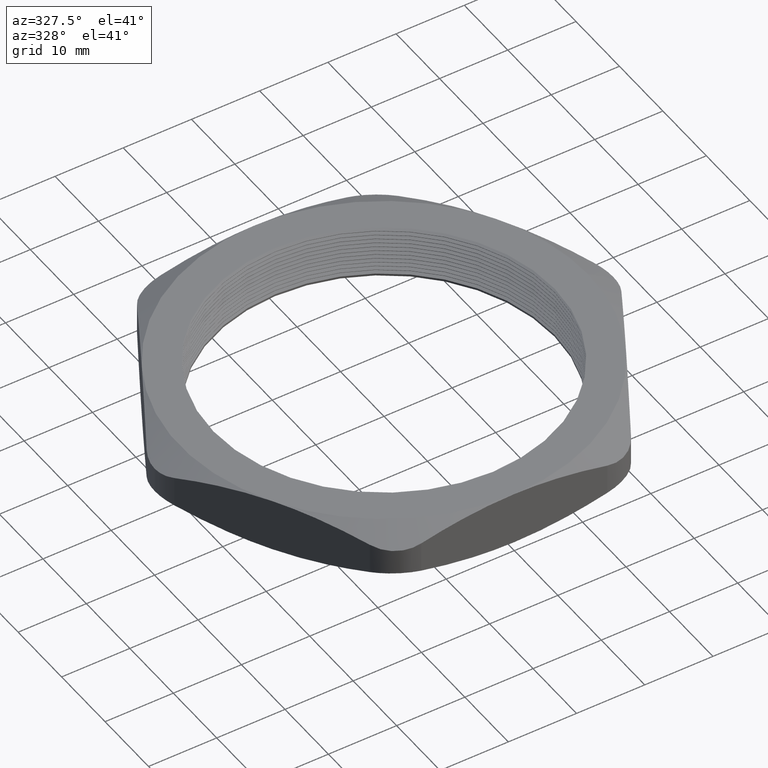
[diagram: clean part render]
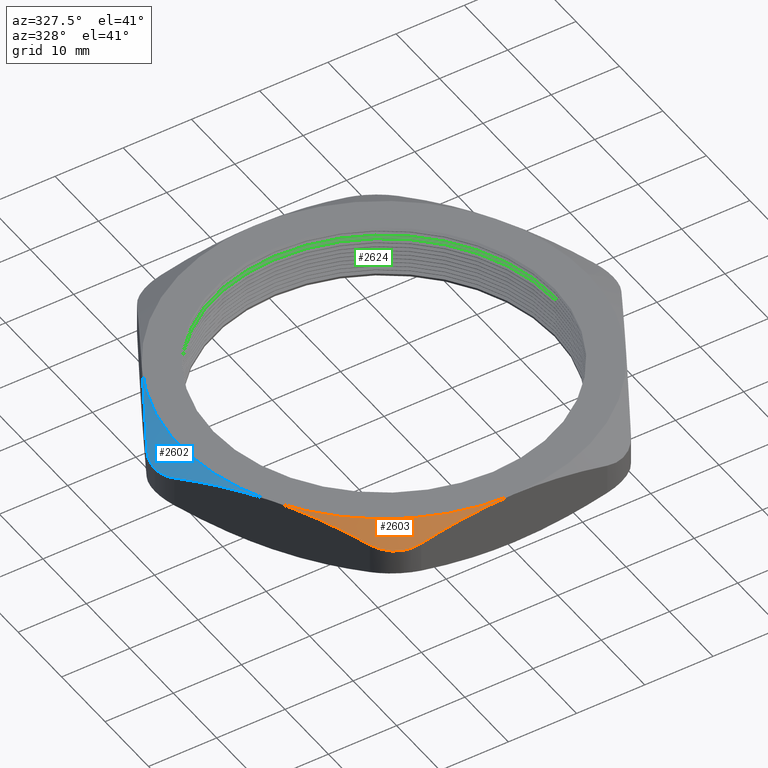
[diagram: same view with three faces highlighted in distinct colors, each labeled with its STEP entity id]
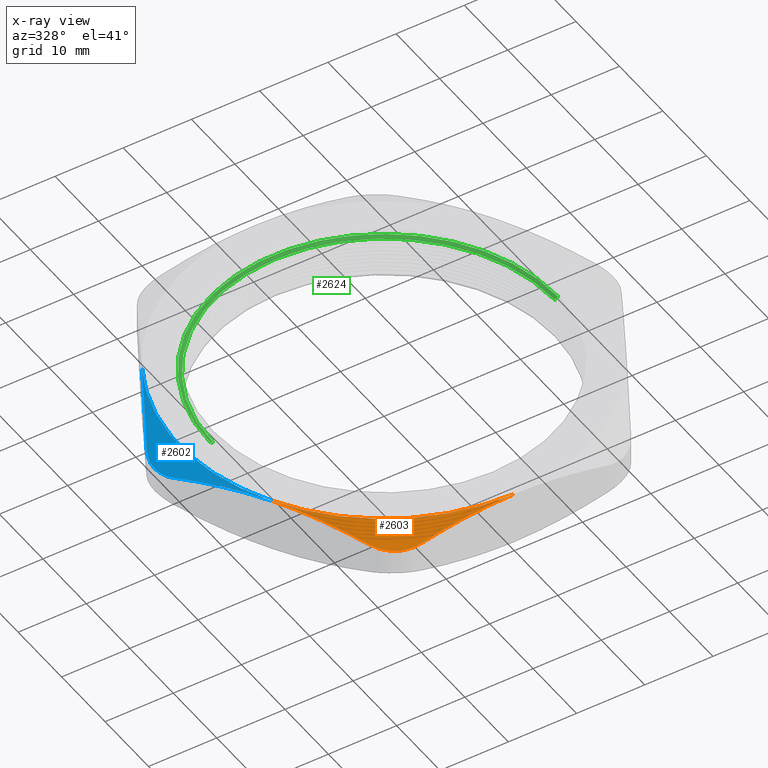
[diagram: x-ray of the same camera — body ghosted, the three highlighted faces saturated]
A machine part, auxiliary view with three faces highlighted in distinct colors.
The next image is the same camera in x-ray (body ghosted, the three faces saturated) — at least one of them is partly hidden behind the body in this view.
Their STEP definitions:

[orange] entity #2603 — the highlighted conical surface has half-angle 60 deg.
#252 = VERTEX_POINT ( 'NONE', #816 ) ;
#254 = EDGE_CURVE ( 'NONE', #255, #252, #870, .T. ) ;
#255 = VERTEX_POINT ( 'NONE', #869 ) ;
#268 = VERTEX_POINT ( 'NONE', #888 ) ;
#272 = EDGE_CURVE ( 'NONE', #273, #268, #874, .T. ) ;
#273 = VERTEX_POINT ( 'NONE', #873 ) ;
#816 = CARTESIAN_POINT ( 'NONE',  ( -0.7534421012924622500, -1.054999999999999900, 0.2427859541343048200 ) ) ;
#861 = CARTESIAN_POINT ( 'NONE',  ( -0.7534421012924622500, -1.054999999999999900, 0.2427859541343048200 ) ) ;
#862 = CARTESIAN_POINT ( 'NONE',  ( -0.7973887212075464500, -0.9788822214861553400, 0.2638030191195697700 ) ) ;
#863 = CARTESIAN_POINT ( 'NONE',  ( -0.8416764008185146900, -0.9021737102506272000, 0.2807020580561905800 ) ) ;
#864 = CARTESIAN_POINT ( 'NONE',  ( -0.9087710475143722100, -0.7859623732575179400, 0.2980438790977822400 ) ) ;
#865 = CARTESIAN_POINT ( 'NONE',  ( -0.9312463869647987800, -0.7470339434120215600, 0.3024908025705310700 ) ) ;
#866 = CARTESIAN_POINT ( 'NONE',  ( -0.9764383408460224300, -0.6687591831964321300, 0.3084714449772219000 ) ) ;
#867 = CARTESIAN_POINT ( 'NONE',  ( -0.9992330720533523200, -0.6292775506004605300, 0.3099999999999998300 ) ) ;
#868 = CARTESIAN_POINT ( 'NONE',  ( -1.021909976465637900, -0.5899999999999998600, 0.3100000000000000000 ) ) ;
#869 = CARTESIAN_POINT ( 'NONE',  ( -1.021909976465637900, -0.5899999999999998600, 0.3100000000000000000 ) ) ;
#870 = B_SPLINE_CURVE_WITH_KNOTS ( 'NONE', 3,
 ( #868, #867, #866, #865, #864, #863, #862, #861 ),
 .UNSPECIFIED., .F., .F.,
 ( 4, 2, 2, 4 ),
 ( 0.01750939737440081500, 0.02093024688783881200, 0.02435109640127681000, 0.03119279542815279700 ),
 .UNSPECIFIED. ) ;
#871 = CARTESIAN_POINT ( 'NONE',  ( -0.5369357503463523300, -1.179999999999999900, 0.2427859541343048700 ) ) ;
#873 = CARTESIAN_POINT ( 'NONE',  ( -0.5369357503463523300, -1.179999999999999900, 0.2427859541343048700 ) ) ;
#874 = B_SPLINE_CURVE_WITH_KNOTS ( 'NONE', 3,
 ( #871, #930, #929, #928, #927, #926 ),
 .UNSPECIFIED., .F., .F.,
 ( 4, 2, 4 ),
 ( 0.03544491570111407700, 0.04231837440594499200, 0.04919183311077591400 ),
 .UNSPECIFIED. ) ;
#888 = CARTESIAN_POINT ( 'NONE',  ( 1.182924880895400800E-016, -1.179999999999999900, 0.3100000000000000000 ) ) ;
#926 = CARTESIAN_POINT ( 'NONE',  ( 1.182924880895400800E-016, -1.179999999999999900, 0.3100000000000000000 ) ) ;
#927 = CARTESIAN_POINT ( 'NONE',  ( -0.09043671930186565600, -1.179999999999999900, 0.3100000000000001600 ) ) ;
#928 = CARTESIAN_POINT ( 'NONE',  ( -0.1803601917600434500, -1.179999999999999900, 0.3039296812339011300 ) ) ;
#929 = CARTESIAN_POINT ( 'NONE',  ( -0.3592866603774632100, -1.180000000000000200, 0.2809023044652343400 ) ) ;
#930 = CARTESIAN_POINT ( 'NONE',  ( -0.4483414298499863700, -1.179999999999999700, 0.2639706617955007200 ) ) ;
#1551 = DIRECTION ( 'NONE',  ( 1.000000000000000000, 0.0000000000000000000, 0.0000000000000000000 ) ) ;
#1552 = DIRECTION ( 'NONE',  ( 0.0000000000000000000, 0.0000000000000000000, -1.000000000000000000 ) ) ;
#1553 = CARTESIAN_POINT ( 'NONE',  ( 0.0000000000000000000, 0.0000000000000000000, 0.3100000000000000000 ) ) ;
#1554 = AXIS2_PLACEMENT_3D ( 'NONE', #1553, #1552, #1551 ) ;
#1555 = CONICAL_SURFACE ( 'NONE', #1554, 1.180000000000000200, 1.047197551196600100 ) ;
#1558 = CARTESIAN_POINT ( 'NONE',  ( -0.5369357503463523300, -1.179999999999999900, 0.2427859541343048700 ) ) ;
#1559 = CARTESIAN_POINT ( 'NONE',  ( -0.5585386968758966300, -1.180000000000000400, 0.2376202493319564400 ) ) ;
#1560 = CARTESIAN_POINT ( 'NONE',  ( -0.5803717184231763600, -1.177156764165109300, 0.2336283984944733400 ) ) ;
#1561 = CARTESIAN_POINT ( 'NONE',  ( -0.6118967407510955700, -1.168744920922675500, 0.2296370671020659700 ) ) ;
#1562 = CARTESIAN_POINT ( 'NONE',  ( -0.6222508287803756300, -1.165250896099422800, 0.2286275982255479600 ) ) ;
#1563 = CARTESIAN_POINT ( 'NONE',  ( -0.6426363754475593600, -1.156823774276417600, 0.2272701564282438600 ) ) ;
#1564 = CARTESIAN_POINT ( 'NONE',  ( -0.6526144673638908400, -1.151897965371903700, 0.2269317070438218200 ) ) ;
#1565 = CARTESIAN_POINT ( 'NONE',  ( -0.6716009541221933400, -1.140915991567793800, 0.2269398675414507300 ) ) ;
#1566 = CARTESIAN_POINT ( 'NONE',  ( -0.6806907329805721400, -1.134828307281984900, 0.2272802097087081900 ) ) ;
#1567 = CARTESIAN_POINT ( 'NONE',  ( -0.6980647301955040800, -1.121461699430824600, 0.2286349243502646400 ) ) ;
#1568 = CARTESIAN_POINT ( 'NONE',  ( -0.7064093568846978600, -1.114115284490268000, 0.2296625828566580800 ) ) ;
#1569 = CARTESIAN_POINT ( 'NONE',  ( -0.7295674056393843800, -1.090847786939235900, 0.2336981853431921400 ) ) ;
#1570 = CARTESIAN_POINT ( 'NONE',  ( -0.7426431885255222500, -1.073704265578844500, 0.2376214738663905100 ) ) ;
#1571 = CARTESIAN_POINT ( 'NONE',  ( -0.7534421012924622500, -1.054999999999999900, 0.2427859541343048200 ) ) ;
#1574 = FACE_OUTER_BOUND ( 'NONE', #2604, .T. ) ;
#1575 = B_SPLINE_CURVE_WITH_KNOTS ( 'NONE', 3,
 ( #1571, #1570, #1569, #1568, #1567, #1566, #1565, #1564, #1563, #1562, #1561, #1560, #1559, #1558 ),
 .UNSPECIFIED., .F., .F.,
 ( 4, 2, 2, 2, 2, 2, 4 ),
 ( 0.0000000000000000000, 0.001669271586080334800, 0.002503907379120498500, 0.003338543172160662300, 0.004173178965200826000, 0.005007814758240989300, 0.006677086344321324500 ),
 .UNSPECIFIED. ) ;
#2152 = DIRECTION ( 'NONE',  ( 1.000000000000000000, 0.0000000000000000000, 0.0000000000000000000 ) ) ;
#2153 = DIRECTION ( 'NONE',  ( 0.0000000000000000000, 0.0000000000000000000, 1.000000000000000000 ) ) ;
#2154 = CARTESIAN_POINT ( 'NONE',  ( 0.0000000000000000000, 0.0000000000000000000, 0.3100000000000000000 ) ) ;
#2155 = AXIS2_PLACEMENT_3D ( 'NONE', #2154, #2153, #2152 ) ;
#2156 = CIRCLE ( 'NONE', #2155, 1.180000000000000200 ) ;
#2594 = EDGE_CURVE ( 'NONE', #252, #273, #1575, .T. ) ;
#2595 = ORIENTED_EDGE ( 'NONE', *, *, #254, .T. ) ;
#2596 = ORIENTED_EDGE ( 'NONE', *, *, #272, .T. ) ;
#2599 = ORIENTED_EDGE ( 'NONE', *, *, #2899, .F. ) ;
#2601 = ORIENTED_EDGE ( 'NONE', *, *, #2594, .T. ) ;
#2603 = ADVANCED_FACE ( 'NONE', ( #1574 ), #1555, .T. ) ;
#2604 = EDGE_LOOP ( 'NONE', ( #2595, #2601, #2596, #2599 ) ) ;
#2899 = EDGE_CURVE ( 'NONE', #255, #268, #2156, .T. ) ;

[blue] entity #2602 — the highlighted conical surface has half-angle 60 deg.
#205 = VERTEX_POINT ( 'NONE', #741 ) ;
#207 = EDGE_CURVE ( 'NONE', #208, #205, #740, .T. ) ;
#208 = VERTEX_POINT ( 'NONE', #739 ) ;
#255 = VERTEX_POINT ( 'NONE', #869 ) ;
#257 = EDGE_CURVE ( 'NONE', #2739, #255, #860, .T. ) ;
#731 = CARTESIAN_POINT ( 'NONE',  ( -1.290377851638813600, 0.1250000000000000300, 0.2427859541343050400 ) ) ;
#732 = CARTESIAN_POINT ( 'NONE',  ( -1.246431231723729400, 0.2011177785138445200, 0.2638030191195699400 ) ) ;
#733 = CARTESIAN_POINT ( 'NONE',  ( -1.202143552112761200, 0.2778262897493731800, 0.2807020580561907500 ) ) ;
#734 = CARTESIAN_POINT ( 'NONE',  ( -1.135048905416903300, 0.3940376267424819900, 0.2980438790977824000 ) ) ;
#735 = CARTESIAN_POINT ( 'NONE',  ( -1.112573565966476800, 0.4329660565879781000, 0.3024908025705314000 ) ) ;
#736 = CARTESIAN_POINT ( 'NONE',  ( -1.067381612085253300, 0.5112408168035678100, 0.3084714449772221800 ) ) ;
#737 = CARTESIAN_POINT ( 'NONE',  ( -1.044586880877922200, 0.5507224493995389600, 0.3100000000000000000 ) ) ;
#738 = CARTESIAN_POINT ( 'NONE',  ( -1.021909976465637600, 0.5900000000000000800, 0.3100000000000000000 ) ) ;
#739 = CARTESIAN_POINT ( 'NONE',  ( -1.021909976465637600, 0.5900000000000000800, 0.3100000000000000000 ) ) ;
#740 = B_SPLINE_CURVE_WITH_KNOTS ( 'NONE', 3,
 ( #738, #737, #736, #735, #734, #733, #732, #731 ),
 .UNSPECIFIED., .F., .F.,
 ( 4, 2, 2, 4 ),
 ( 0.01750939737440082600, 0.02093024688783882300, 0.02435109640127682000, 0.03119279542815281400 ),
 .UNSPECIFIED. ) ;
#741 = CARTESIAN_POINT ( 'NONE',  ( -1.290377851638813600, 0.1250000000000000300, 0.2427859541343050400 ) ) ;
#852 = CARTESIAN_POINT ( 'NONE',  ( -1.021909976465637900, -0.5899999999999998600, 0.3100000000000000000 ) ) ;
#853 = CARTESIAN_POINT ( 'NONE',  ( -1.067459181867329100, -0.5111064619998794100, 0.3100000000000000500 ) ) ;
#854 = CARTESIAN_POINT ( 'NONE',  ( -1.112566298939979600, -0.4329786434470911900, 0.3038445522537128700 ) ) ;
#855 = CARTESIAN_POINT ( 'NONE',  ( -1.202005897894104400, -0.2780647138499643400, 0.2807479695387029600 ) ) ;
#856 = CARTESIAN_POINT ( 'NONE',  ( -1.246341198180636900, -0.2012737211848655600, 0.2638460768298027700 ) ) ;
#857 = CARTESIAN_POINT ( 'NONE',  ( -1.290377851638813600, -0.1249999999999999600, 0.2427859541343050100 ) ) ;
#860 = B_SPLINE_CURVE_WITH_KNOTS ( 'NONE', 3,
 ( #857, #856, #855, #854, #853, #852 ),
 .UNSPECIFIED., .F., .F.,
 ( 4, 2, 4 ),
 ( 0.003767047510153079000, 0.01063822244227694500, 0.01750939737440081500 ),
 .UNSPECIFIED. ) ;
#869 = CARTESIAN_POINT ( 'NONE',  ( -1.021909976465637900, -0.5899999999999998600, 0.3100000000000000000 ) ) ;
#1484 = CARTESIAN_POINT ( 'NONE',  ( -1.301193061145003800, 0.1062675076407767200, 0.2376136801013972500 ) ) ;
#1485 = CARTESIAN_POINT ( 'NONE',  ( -1.290377851638813600, 0.1250000000000000300, 0.2427859541343050400 ) ) ;
#1487 = B_SPLINE_CURVE_WITH_KNOTS ( 'NONE', 3,
 ( #1485, #1484, #1541, #1540, #1539, #1538, #1537, #1536 ),
 .UNSPECIFIED., .F., .F.,
 ( 4, 2, 2, 4 ),
 ( 1.301042606982605300E-018, 0.001671790699287653900, 0.002507686048931480300, 0.003343581398575306400 ),
 .UNSPECIFIED. ) ;
#1536 = CARTESIAN_POINT ( 'NONE',  ( -1.323871500692703800, 5.122215111375351400E-017, 0.2269357503463525200 ) ) ;
#1537 = CARTESIAN_POINT ( 'NONE',  ( -1.323871500692704200, 0.01098405379685881400, 0.2269357503463525200 ) ) ;
#1538 = CARTESIAN_POINT ( 'NONE',  ( -1.323150731314133300, 0.02191688359895187600, 0.2272730796241370100 ) ) ;
#1539 = CARTESIAN_POINT ( 'NONE',  ( -1.320270611761771700, 0.04368023203091927300, 0.2286236963736374100 ) ) ;
#1540 = CARTESIAN_POINT ( 'NONE',  ( -1.318082992759608500, 0.05459731993352161300, 0.2296502803749608500 ) ) ;
#1541 = CARTESIAN_POINT ( 'NONE',  ( -1.309510802919500800, 0.08634002578141512800, 0.2336862750730250300 ) ) ;
#1556 = DIRECTION ( 'NONE',  ( 1.000000000000000000, 0.0000000000000000000, 0.0000000000000000000 ) ) ;
#1557 = DIRECTION ( 'NONE',  ( 0.0000000000000000000, 0.0000000000000000000, -1.000000000000000000 ) ) ;
#1572 = CARTESIAN_POINT ( 'NONE',  ( 0.0000000000000000000, 0.0000000000000000000, 0.3100000000000000000 ) ) ;
#1573 = AXIS2_PLACEMENT_3D ( 'NONE', #1572, #1557, #1556 ) ;
#1576 = FACE_OUTER_BOUND ( 'NONE', #2600, .T. ) ;
#1577 = CONICAL_SURFACE ( 'NONE', #1573, 1.180000000000000200, 1.047197551196600100 ) ;
#1848 = CARTESIAN_POINT ( 'NONE',  ( -1.323871500692703800, 5.122215111375351400E-017, 0.2269357503463525200 ) ) ;
#1857 = CARTESIAN_POINT ( 'NONE',  ( -1.290377851638813600, -0.1249999999999999600, 0.2427859541343050100 ) ) ;
#1866 = CARTESIAN_POINT ( 'NONE',  ( -1.290377851638813600, -0.1249999999999999600, 0.2427859541343050100 ) ) ;
#1867 = CARTESIAN_POINT ( 'NONE',  ( -1.301163024300265200, -0.1063195329819643000, 0.2376280449449062200 ) ) ;
#1868 = CARTESIAN_POINT ( 'NONE',  ( -1.309608273902644400, -0.08602256121026814800, 0.2336403273867145000 ) ) ;
#1869 = CARTESIAN_POINT ( 'NONE',  ( -1.318085377249127700, -0.05456655859989932600, 0.2296491859462562700 ) ) ;
#1870 = CARTESIAN_POINT ( 'NONE',  ( -1.320238384401354300, -0.04387041525387947600, 0.2286388179600905800 ) ) ;
#1871 = CARTESIAN_POINT ( 'NONE',  ( -1.323141469423208900, -0.02203945126250688900, 0.2272774143254682700 ) ) ;
#1872 = CARTESIAN_POINT ( 'NONE',  ( -1.323871500692704200, -0.01095095147729030500, 0.2269357503463524400 ) ) ;
#1873 = CARTESIAN_POINT ( 'NONE',  ( -1.323871500692703800, 5.122215111375351400E-017, 0.2269357503463525200 ) ) ;
#1876 = B_SPLINE_CURVE_WITH_KNOTS ( 'NONE', 3,
 ( #1873, #1872, #1871, #1870, #1869, #1868, #1867, #1866 ),
 .UNSPECIFIED., .F., .F.,
 ( 4, 2, 2, 4 ),
 ( 0.003343581398575306400, 0.004176957635011810700, 0.005010333871448315900, 0.006677086344321325400 ),
 .UNSPECIFIED. ) ;
#2147 = DIRECTION ( 'NONE',  ( 1.000000000000000000, 0.0000000000000000000, 0.0000000000000000000 ) ) ;
#2148 = DIRECTION ( 'NONE',  ( 0.0000000000000000000, 0.0000000000000000000, 1.000000000000000000 ) ) ;
#2149 = CARTESIAN_POINT ( 'NONE',  ( 0.0000000000000000000, 0.0000000000000000000, 0.3100000000000000000 ) ) ;
#2150 = AXIS2_PLACEMENT_3D ( 'NONE', #2149, #2148, #2147 ) ;
#2151 = CIRCLE ( 'NONE', #2150, 1.180000000000000200 ) ;
#2560 = ORIENTED_EDGE ( 'NONE', *, *, #257, .T. ) ;
#2562 = ORIENTED_EDGE ( 'NONE', *, *, #2754, .T. ) ;
#2576 = ORIENTED_EDGE ( 'NONE', *, *, #2902, .F. ) ;
#2577 = EDGE_CURVE ( 'NONE', #205, #2741, #1487, .T. ) ;
#2578 = ORIENTED_EDGE ( 'NONE', *, *, #2577, .T. ) ;
#2585 = ORIENTED_EDGE ( 'NONE', *, *, #207, .T. ) ;
#2600 = EDGE_LOOP ( 'NONE', ( #2585, #2578, #2562, #2560, #2576 ) ) ;
#2602 = ADVANCED_FACE ( 'NONE', ( #1576 ), #1577, .T. ) ;
#2739 = VERTEX_POINT ( 'NONE', #1857 ) ;
#2741 = VERTEX_POINT ( 'NONE', #1848 ) ;
#2754 = EDGE_CURVE ( 'NONE', #2741, #2739, #1876, .T. ) ;
#2902 = EDGE_CURVE ( 'NONE', #208, #255, #2151, .T. ) ;

[green] entity #2624 — the highlighted conical surface has half-angle 60 deg.
#154 = EDGE_CURVE ( 'NONE', #2430, #2411, #603, .T. ) ;
#377 = ORIENTED_EDGE ( 'NONE', *, *, #2782, .T. ) ;
#378 = ORIENTED_EDGE ( 'NONE', *, *, #154, .F. ) ;
#601 = DIRECTION ( 'NONE',  ( 0.0000000000000000000, 0.0000000000000000000, 1.000000000000000000 ) ) ;
#602 = AXIS2_PLACEMENT_3D ( 'NONE', #608, #601, #662 ) ;
#603 = CIRCLE ( 'NONE', #602, 0.9849999999999999900 ) ;
#608 = CARTESIAN_POINT ( 'NONE',  ( 0.0000000000000000000, 0.0000000000000000000, 0.2369059892324149900 ) ) ;
#662 = DIRECTION ( 'NONE',  ( 1.000000000000000000, 0.0000000000000000000, 0.0000000000000000000 ) ) ;
#1215 = CARTESIAN_POINT ( 'NONE',  ( -0.9849999999999999900, 0.0000000000000000000, 0.2369059892324149900 ) ) ;
#1241 = CARTESIAN_POINT ( 'NONE',  ( 0.9849999999999999900, 1.206277097160143100E-016, 0.2369059892324149900 ) ) ;
#1276 = CARTESIAN_POINT ( 'NONE',  ( -1.005000000000000100, 0.0000000000000000000, 0.2484529946162076800 ) ) ;
#1286 = DIRECTION ( 'NONE',  ( -0.8660254037844360400, 1.060575238724903700E-016, 0.5000000000000045500 ) ) ;
#1287 = VECTOR ( 'NONE', #1286, 39.37007874015748100 ) ;
#1288 = CARTESIAN_POINT ( 'NONE',  ( -0.9849999999999999900, 1.206277097160143100E-016, 0.2369059892324149900 ) ) ;
#1289 = LINE ( 'NONE', #1288, #1287 ) ;
#1619 = DIRECTION ( 'NONE',  ( 1.000000000000000000, 0.0000000000000000000, 0.0000000000000000000 ) ) ;
#1620 = DIRECTION ( 'NONE',  ( 0.0000000000000000000, 0.0000000000000000000, 1.000000000000000000 ) ) ;
#1621 = CARTESIAN_POINT ( 'NONE',  ( 0.0000000000000000000, 0.0000000000000000000, 0.2369059892324149900 ) ) ;
#1622 = AXIS2_PLACEMENT_3D ( 'NONE', #1621, #1620, #1619 ) ;
#1623 = CONICAL_SURFACE ( 'NONE', #1622, 0.9849999999999999900, 1.047197551196592500 ) ;
#1624 = FACE_OUTER_BOUND ( 'NONE', #2622, .T. ) ;
#1648 = DIRECTION ( 'NONE',  ( 1.000000000000000000, 0.0000000000000000000, 0.0000000000000000000 ) ) ;
#1663 = DIRECTION ( 'NONE',  ( 0.0000000000000000000, 0.0000000000000000000, 1.000000000000000000 ) ) ;
#1664 = CARTESIAN_POINT ( 'NONE',  ( 0.0000000000000000000, 0.0000000000000000000, 0.2484529946162076800 ) ) ;
#1665 = AXIS2_PLACEMENT_3D ( 'NONE', #1664, #1663, #1648 ) ;
#1666 = CIRCLE ( 'NONE', #1665, 1.005000000000000100 ) ;
#1927 = CARTESIAN_POINT ( 'NONE',  ( 1.005000000000000100, 1.230770033143090100E-016, 0.2484529946162076800 ) ) ;
#1933 = DIRECTION ( 'NONE',  ( 0.8660254037844360400, 0.0000000000000000000, 0.5000000000000045500 ) ) ;
#1934 = VECTOR ( 'NONE', #1933, 39.37007874015748100 ) ;
#1935 = CARTESIAN_POINT ( 'NONE',  ( 0.9849999999999999900, 0.0000000000000000000, 0.2369059892324149900 ) ) ;
#1936 = LINE ( 'NONE', #1935, #1934 ) ;
#2411 = VERTEX_POINT ( 'NONE', #1215 ) ;
#2430 = VERTEX_POINT ( 'NONE', #1241 ) ;
#2435 = EDGE_CURVE ( 'NONE', #2411, #2441, #1289, .T. ) ;
#2441 = VERTEX_POINT ( 'NONE', #1276 ) ;
#2622 = EDGE_LOOP ( 'NONE', ( #2625, #378, #377, #2734 ) ) ;
#2624 = ADVANCED_FACE ( 'NONE', ( #1624 ), #1623, .F. ) ;
#2625 = ORIENTED_EDGE ( 'NONE', *, *, #2435, .F. ) ;
#2637 = EDGE_CURVE ( 'NONE', #2785, #2441, #1666, .T. ) ;
#2734 = ORIENTED_EDGE ( 'NONE', *, *, #2637, .T. ) ;
#2782 = EDGE_CURVE ( 'NONE', #2430, #2785, #1936, .T. ) ;
#2785 = VERTEX_POINT ( 'NONE', #1927 ) ;